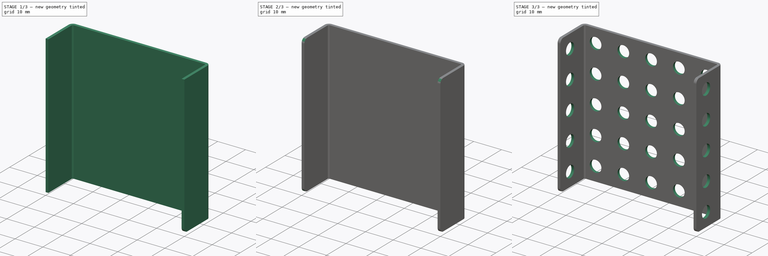
[diagram: build sequence overview — one tinted view per stage of 3, left to right]
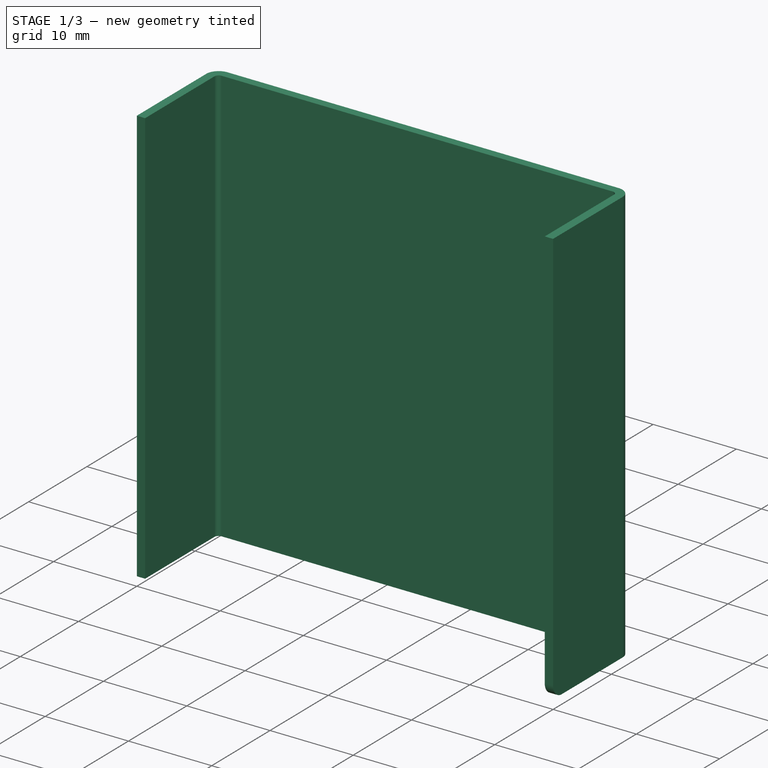
[diagram: stage 1 of 3 — iso view after this stage's code; geometry added in this stage tinted green]
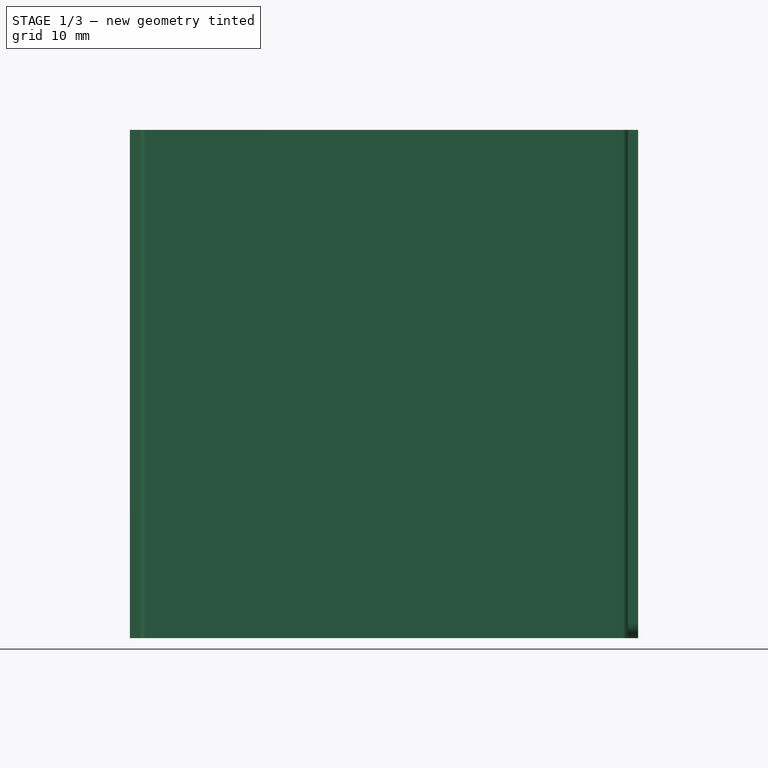
[diagram: stage 1 of 3 — front view after this stage's code; geometry added in this stage tinted green]
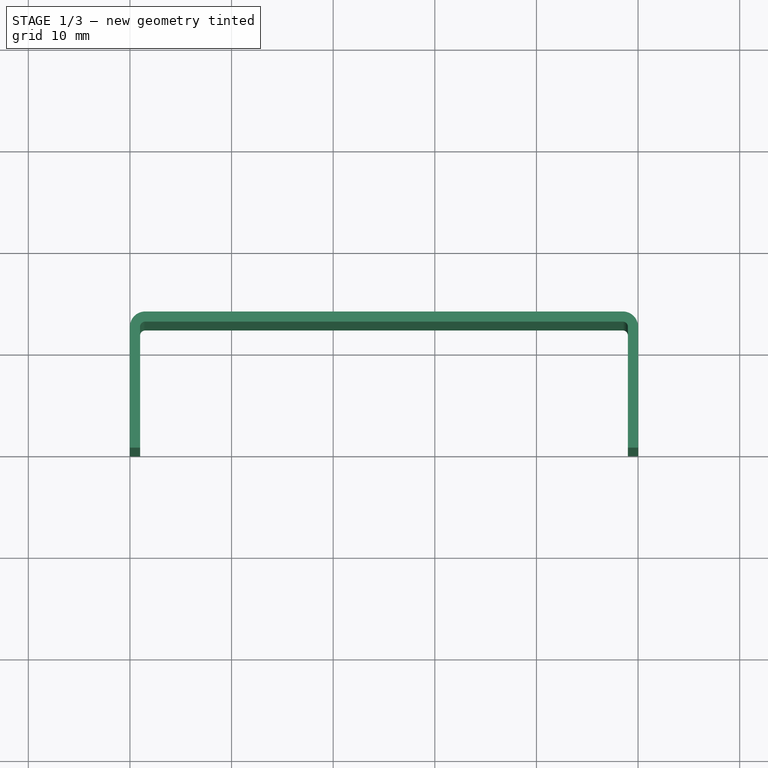
[diagram: stage 1 of 3 — top view after this stage's code; geometry added in this stage tinted green]
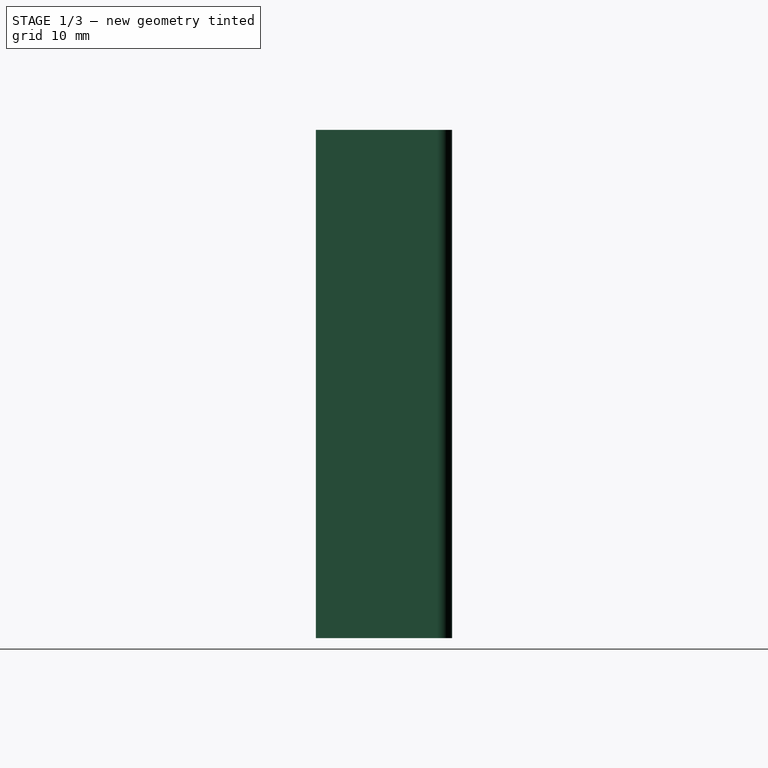
[diagram: stage 1 of 3 — right view after this stage's code; geometry added in this stage tinted green]
FCSTD DOCUMENT  (FreeCAD 0.16RUnknown)
Label: skoba_1_5_1
License: All rights reserved
LicenseURL: http://en.wikipedia.org/wiki/All_rights_reserved
objects: PartDesign::Fillet×4, Sketcher::SketchObject×3, PartDesign::Pocket×2, PartDesign::Pad×1
note: 13 computed .brp shape members not serialized (recipe doc carries the construction recipe); baked Part::Feature solids carry a one-line shape summary decoded from their .brp

FEATURE [Sketcher::SketchObject] Sketch
  sketch-geometry (12):
    g0: LineSegment StartX=0 StartY=0 StartZ=0 EndX=0 EndY=11.9 EndZ=0
    g1: LineSegment StartX=1.5 StartY=13.4 StartZ=0 EndX=48.5 EndY=13.4 EndZ=0
    g2: LineSegment StartX=50 StartY=11.9 StartZ=0 EndX=50 EndY=0 EndZ=0
    g3: ArcOfCircle CenterX=1.5 CenterY=11.9 CenterZ=0 NormalX=0 NormalY=0 NormalZ=1 Radius=1.5 StartAngle=1.5708 EndAngle=3.14159
    g4: ArcOfCircle CenterX=48.5 CenterY=11.9 CenterZ=0 NormalX=0 NormalY=0 NormalZ=1 Radius=1.5 StartAngle=0 EndAngle=1.5708
    g5: LineSegment StartX=0 StartY=0 StartZ=0 EndX=1 EndY=0 EndZ=0
    g6: LineSegment StartX=1 StartY=0 StartZ=0 EndX=1 EndY=11.9 EndZ=0
    g7: LineSegment StartX=1.5 StartY=12.4 StartZ=0 EndX=48.5 EndY=12.4 EndZ=0
    g8: LineSegment StartX=49 StartY=11.9 StartZ=0 EndX=49 EndY=0 EndZ=0
    g9: LineSegment StartX=49 StartY=0 StartZ=0 EndX=50 EndY=0 EndZ=0
    g10: ArcOfCircle CenterX=1.5 CenterY=11.9 CenterZ=0 NormalX=0 NormalY=0 NormalZ=1 Radius=0.5 StartAngle=1.5708 EndAngle=3.14159
    g11: ArcOfCircle CenterX=48.5 CenterY=11.9 CenterZ=0 NormalX=0 NormalY=0 NormalZ=1 Radius=0.5 StartAngle=0 EndAngle=1.5708
  constraints (32):
    c: PointOnObject(g0,g-1)
    c: Vertical(g0)
    c: Horizontal(g1)
    c: PointOnObject(g2,g-1)
    c: Vertical(g2)
    c: Tangent(g0,g3) = 1.5708
    c: Tangent(g1,g3) = 1.5708
    c: Tangent(g1,g4) = 1.5708
    c: Tangent(g2,g4) = 1.5708
    c: Radius(g3) = 1.5
    c: Equal(g3,g4)
    c: DistanceX(g0,g2) = 50
    c: DistanceY(g2,g1) = 13.4
    c: Coincident(g0,g-1)
    c: Coincident(g5,g-1)
    c: PointOnObject(g5,g-1)
    c: Coincident(g5,g6)
    c: Vertical(g6)
    c: Horizontal(g7)
    c: Vertical(g8)
    c: Coincident(g8,g9)
    c: Horizontal(g9)
    c: Coincident(g9,g2)
    c: DistanceX(g5,g5) = 1
    c: DistanceX(g9,g9) = 1
    c: Tangent(g6,g10) = 1.5708
    c: Tangent(g7,g10) = 1.5708
    c: Radius(g10) = 0.5
    c: DistanceY(g7,g1) = 1
    c: Tangent(g7,g11) = 1.5708
    c: Tangent(g8,g11) = 1.5708
    c: Radius(g11) = 0.5
FEATURE [PartDesign::Pad] Pad
  Length = 50
  Length2 = 100
  Sketch = -> Sketch
  Type = 0
FEATURE [PartDesign::Fillet] Fillet
  Base = -> Pad [Edge18]
  Radius = 1.5
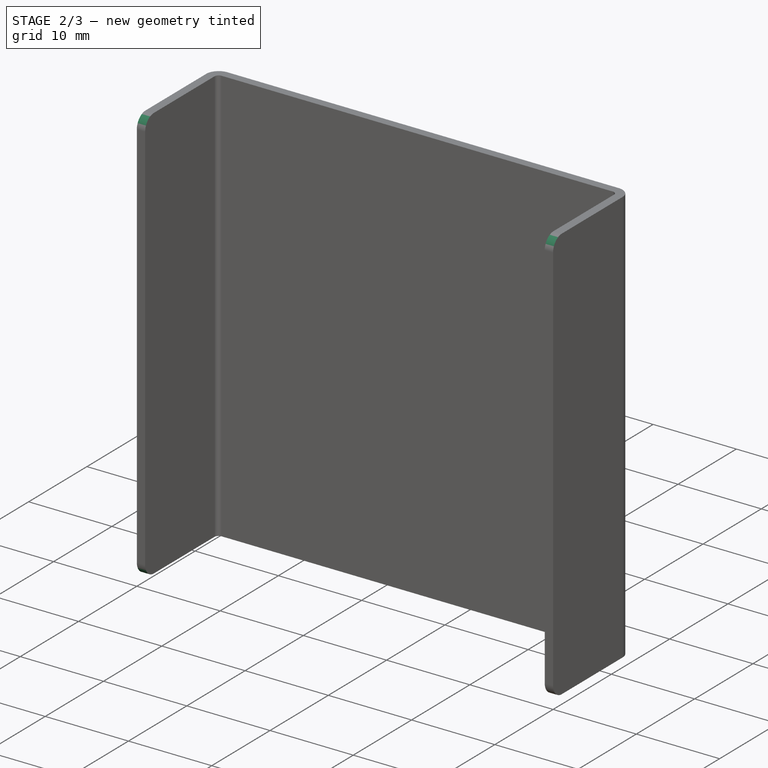
[diagram: stage 2 of 3 — iso view after this stage's code; geometry added in this stage tinted green]
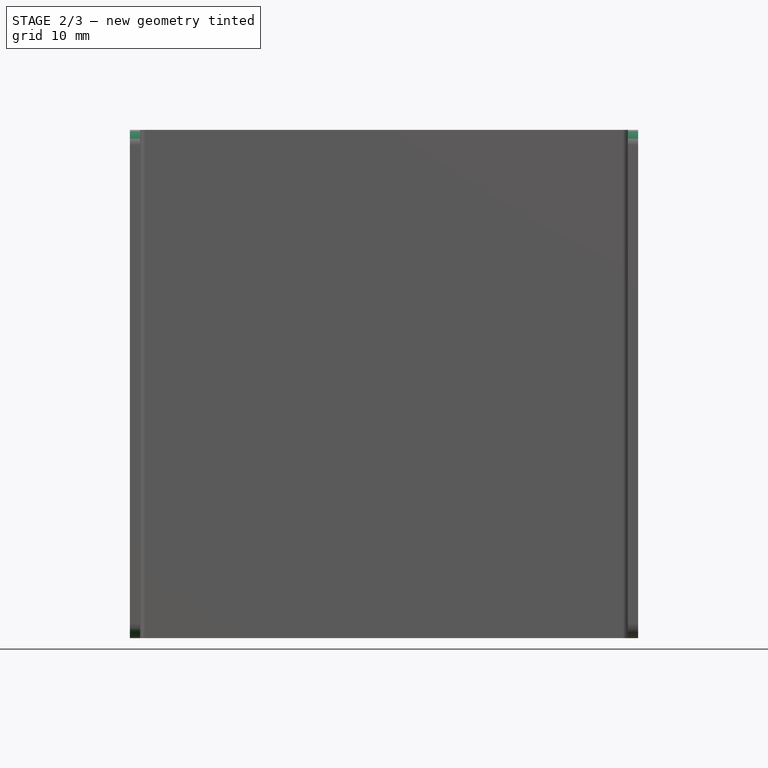
[diagram: stage 2 of 3 — front view after this stage's code; geometry added in this stage tinted green]
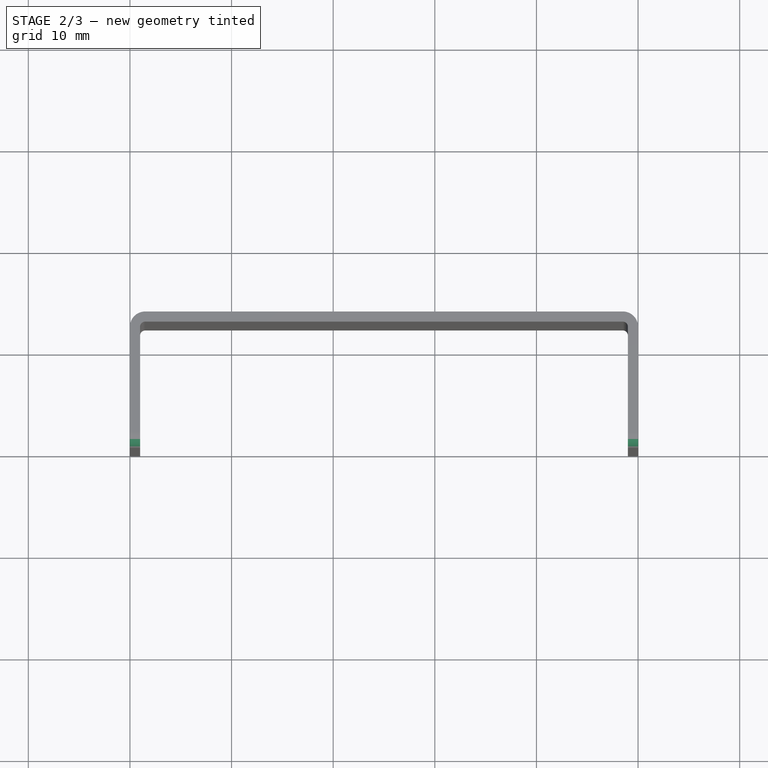
[diagram: stage 2 of 3 — top view after this stage's code; geometry added in this stage tinted green]
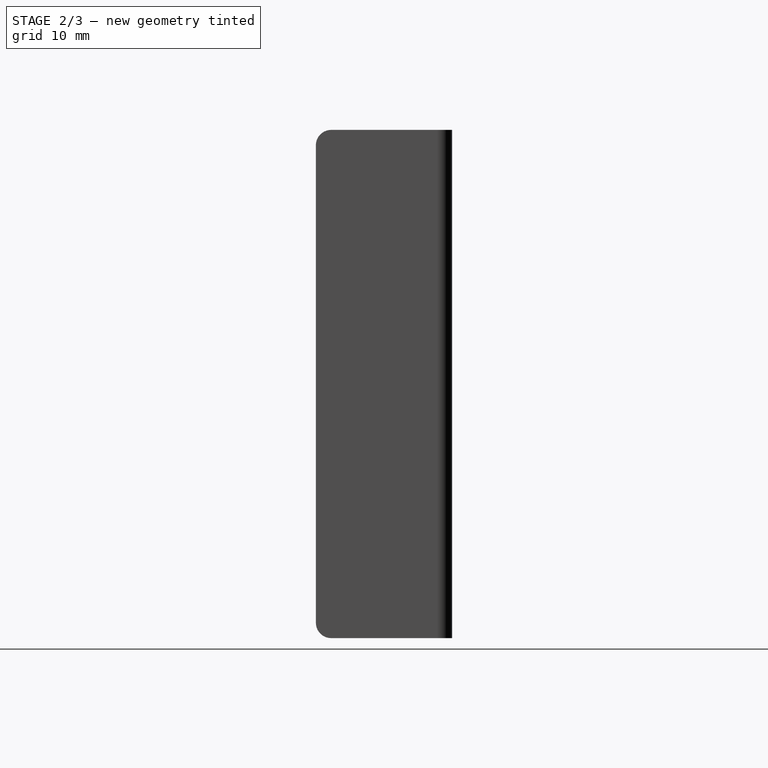
[diagram: stage 2 of 3 — right view after this stage's code; geometry added in this stage tinted green]
FEATURE [PartDesign::Fillet] Fillet001
  Base = -> Fillet [Edge29]
  Radius = 1.5
FEATURE [PartDesign::Fillet] Fillet002
  Base = -> Fillet001 [Edge42]
  Radius = 1.5
FEATURE [PartDesign::Fillet] Fillet003
  Base = -> Fillet002 [Edge22]
  Radius = 1.5
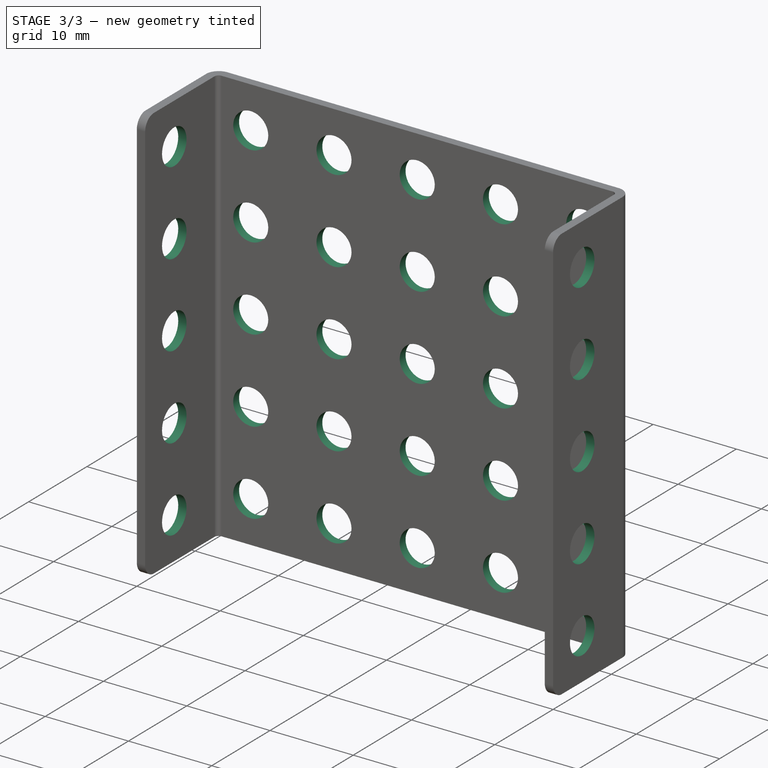
[diagram: stage 3 of 3 — iso view after this stage's code; geometry added in this stage tinted green]
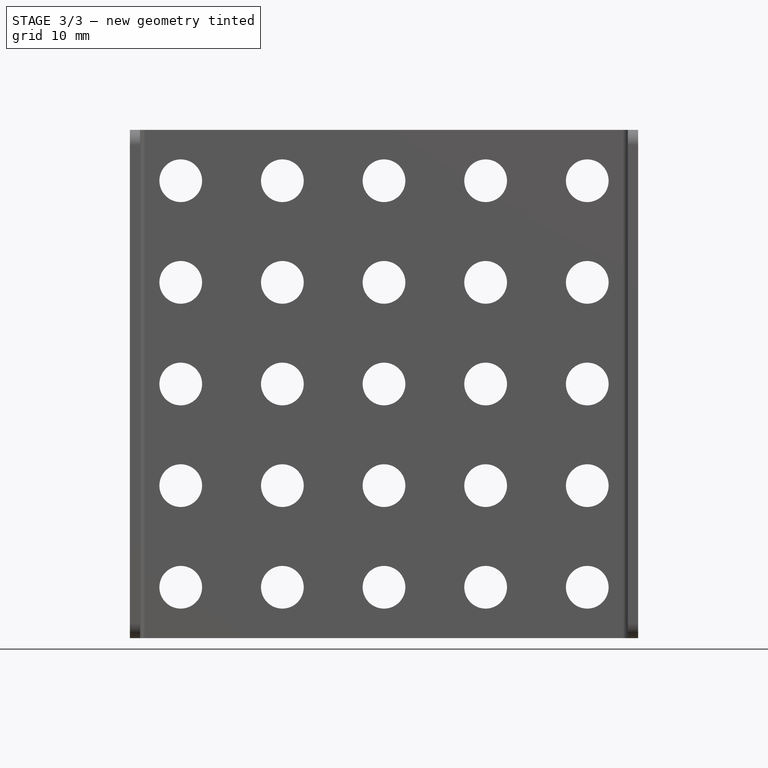
[diagram: stage 3 of 3 — front view after this stage's code; geometry added in this stage tinted green]
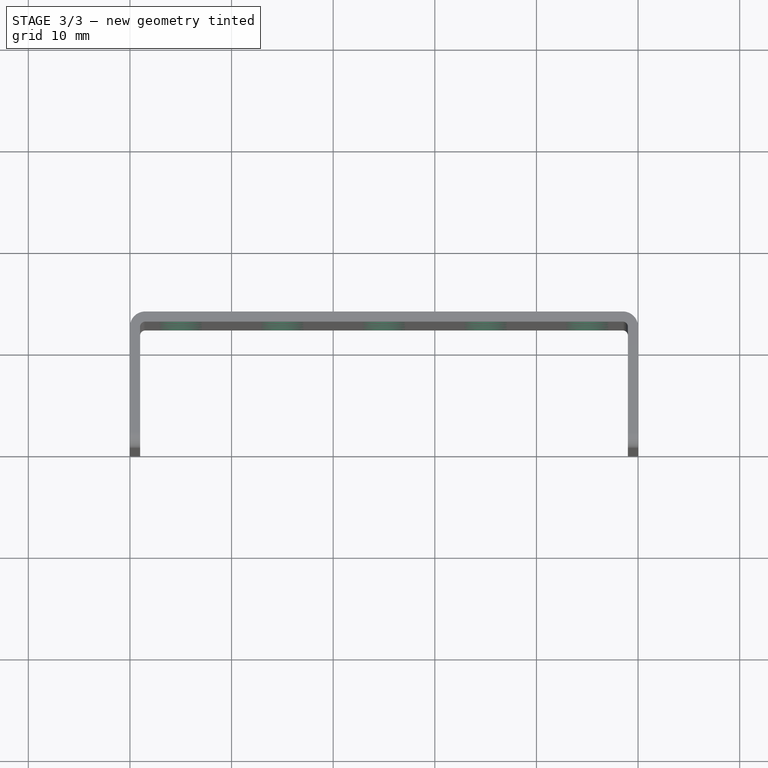
[diagram: stage 3 of 3 — top view after this stage's code; geometry added in this stage tinted green]
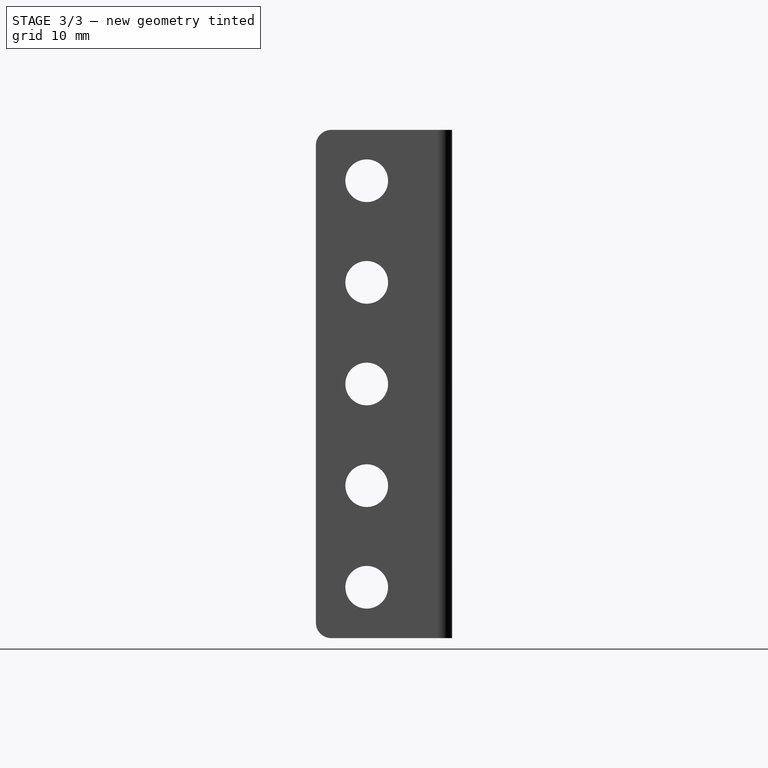
[diagram: stage 3 of 3 — right view after this stage's code; geometry added in this stage tinted green]
FEATURE [Sketcher::SketchObject] Sketch001
  Placement = pos=(0,0,0) rot=(0.57735,-0.57735,-0.57735;2.0944rad)
  Support = -> Fillet003 [Face2]
  sketch-geometry (9):
    g0: Circle CenterX=-5 CenterY=5 CenterZ=0 NormalX=0 NormalY=0 NormalZ=1 Radius=2.1
    g1: Circle CenterX=-5 CenterY=15 CenterZ=0 NormalX=0 NormalY=0 NormalZ=1 Radius=2.1
    g2: LineSegment [constr] StartX=-5 StartY=5 StartZ=0 EndX=-5 EndY=15 EndZ=0
    g3: Circle CenterX=-5 CenterY=25 CenterZ=0 NormalX=0 NormalY=0 NormalZ=1 Radius=2.1
    g4: LineSegment [constr] StartX=-5 StartY=15 StartZ=0 EndX=-5 EndY=25 EndZ=0
    g5: Circle CenterX=-5 CenterY=35 CenterZ=0 NormalX=0 NormalY=0 NormalZ=1 Radius=2.1
    g6: LineSegment [constr] StartX=-5 StartY=25 StartZ=0 EndX=-5 EndY=35 EndZ=0
    g7: Circle CenterX=-5 CenterY=45 CenterZ=0 NormalX=0 NormalY=0 NormalZ=1 Radius=2.1
    g8: LineSegment [constr] StartX=-5 StartY=35 StartZ=0 EndX=-5 EndY=45 EndZ=0
  constraints (23):
    c: Radius(g0) = 2.1
    c: DistanceX(g0) = -5
    c: DistanceY(g0) = 5
    c: Equal(g0,g1) = 2.1
    c: Coincident(g0,g2)
    c: Coincident(g1,g2)
    c: Distance(g2) = 10
    c: Angle(g2) = 1.5708
    c: Equal(g0,g3) = 2.1
    c: Coincident(g1,g4)
    c: Coincident(g3,g4)
    c: Equal(g2,g4)
    c: Parallel(g4,g2)
    c: Equal(g0,g5) = 2.1
    c: Coincident(g3,g6)
    c: Coincident(g5,g6)
    c: Equal(g2,g6)
    c: Parallel(g6,g2)
    c: Equal(g0,g7) = 2.1
    c: Coincident(g5,g8)
    c: Coincident(g7,g8)
    c: Equal(g2,g8)
    c: Parallel(g8,g2)
FEATURE [PartDesign::Pocket] Pocket
  Length = 5
  Sketch = -> Sketch001
  Type = 1
FEATURE [Sketcher::SketchObject] Sketch002
  Placement = pos=(0,13.4,0) rot=(0,0.707107,0.707107;3.14159rad)
  Support = -> Pocket [Face6]
  sketch-geometry (49):
    g0: Circle CenterX=-5 CenterY=5 CenterZ=0 NormalX=0 NormalY=0 NormalZ=1 Radius=2.1
    g1: Circle CenterX=-5 CenterY=15 CenterZ=0 NormalX=0 NormalY=0 NormalZ=1 Radius=2.1
    g2: LineSegment [constr] StartX=-5 StartY=5 StartZ=0 EndX=-5 EndY=15 EndZ=0
    g3: Circle CenterX=-5 CenterY=25 CenterZ=0 NormalX=0 NormalY=0 NormalZ=1 Radius=2.1
    g4: LineSegment [constr] StartX=-5 StartY=15 StartZ=0 EndX=-5 EndY=25 EndZ=0
    g5: Circle CenterX=-5 CenterY=35 CenterZ=0 NormalX=0 NormalY=0 NormalZ=1 Radius=2.1
    g6: LineSegment [constr] StartX=-5 StartY=25 StartZ=0 EndX=-5 EndY=35 EndZ=0
    g7: Circle CenterX=-5 CenterY=45 CenterZ=0 NormalX=0 NormalY=0 NormalZ=1 Radius=2.1
    g8: LineSegment [constr] StartX=-5 StartY=35 StartZ=0 EndX=-5 EndY=45 EndZ=0
    g9: Circle CenterX=-15 CenterY=45 CenterZ=0 NormalX=0 NormalY=0 NormalZ=1 Radius=2.1
    g10: LineSegment [constr] StartX=-5 StartY=45 StartZ=0 EndX=-15 EndY=45 EndZ=0
    g11: Circle CenterX=-25 CenterY=45 CenterZ=0 NormalX=0 NormalY=0 NormalZ=1 Radius=2.1
    g12: LineSegment [constr] StartX=-15 StartY=45 StartZ=0 EndX=-25 EndY=45 EndZ=0
    g13: Circle CenterX=-35 CenterY=45 CenterZ=0 NormalX=0 NormalY=0 NormalZ=1 Radius=2.1
    g14: LineSegment [constr] StartX=-25 StartY=45 StartZ=0 EndX=-35 EndY=45 EndZ=0
    g15: Circle CenterX=-45 CenterY=45 CenterZ=0 NormalX=0 NormalY=0 NormalZ=1 Radius=2.1
    g16: LineSegment [constr] StartX=-35 StartY=45 StartZ=0 EndX=-45 EndY=45 EndZ=0
    g17: Circle CenterX=-15 CenterY=35 CenterZ=0 NormalX=0 NormalY=0 NormalZ=1 Radius=2.1
    g18: LineSegment [constr] StartX=-5 StartY=35 StartZ=0 EndX=-15 EndY=35 EndZ=0
    g19: Circle CenterX=-25 CenterY=35 CenterZ=0 NormalX=0 NormalY=0 NormalZ=1 Radius=2.1
    g20: LineSegment [constr] StartX=-15 StartY=35 StartZ=0 EndX=-25 EndY=35 EndZ=0
    g21: Circle CenterX=-35 CenterY=35 CenterZ=0 NormalX=0 NormalY=0 NormalZ=1 Radius=2.1
    g22: LineSegment [constr] StartX=-25 StartY=35 StartZ=0 EndX=-35 EndY=35 EndZ=0
    g23: Circle CenterX=-45 CenterY=35 CenterZ=0 NormalX=0 NormalY=0 NormalZ=1 Radius=2.1
    g24: LineSegment [constr] StartX=-35 StartY=35 StartZ=0 EndX=-45 EndY=35 EndZ=0
    g25: Circle CenterX=-15 CenterY=25 CenterZ=0 NormalX=0 NormalY=0 NormalZ=1 Radius=2.1
    g26: LineSegment [constr] StartX=-5 StartY=25 StartZ=0 EndX=-15 EndY=25 EndZ=0
    g27: Circle CenterX=-25 CenterY=25 CenterZ=0 NormalX=0 NormalY=0 NormalZ=1 Radius=2.1
    g28: LineSegment [constr] StartX=-15 StartY=25 StartZ=0 EndX=-25 EndY=25 EndZ=0
    g29: Circle CenterX=-35 CenterY=25 CenterZ=0 NormalX=0 NormalY=0 NormalZ=1 Radius=2.1
    g30: LineSegment [constr] StartX=-25 StartY=25 StartZ=0 EndX=-35 EndY=25 EndZ=0
    g31: Circle CenterX=-45 CenterY=25 CenterZ=0 NormalX=0 NormalY=0 NormalZ=1 Radius=2.1
    g32: LineSegment [constr] StartX=-35 StartY=25 StartZ=0 EndX=-45 EndY=25 EndZ=0
    g33: Circle CenterX=-15 CenterY=15 CenterZ=0 NormalX=0 NormalY=0 NormalZ=1 Radius=2.1
    g34: LineSegment [constr] StartX=-5 StartY=15 StartZ=0 EndX=-15 EndY=15 EndZ=0
    g35: Circle CenterX=-25 CenterY=15 CenterZ=0 NormalX=0 NormalY=0 NormalZ=1 Radius=2.1
    g36: LineSegment [constr] StartX=-15 StartY=15 StartZ=0 EndX=-25 EndY=15 EndZ=0
    g37: Circle CenterX=-35 CenterY=15 CenterZ=0 NormalX=0 NormalY=0 NormalZ=1 Radius=2.1
    g38: LineSegment [constr] StartX=-25 StartY=15 StartZ=0 EndX=-35 EndY=15 EndZ=0
    g39: Circle CenterX=-45 CenterY=15 CenterZ=0 NormalX=0 NormalY=0 NormalZ=1 Radius=2.1
    g40: LineSegment [constr] StartX=-35 StartY=15 StartZ=0 EndX=-45 EndY=15 EndZ=0
    g41: Circle CenterX=-15 CenterY=5 CenterZ=0 NormalX=0 NormalY=0 NormalZ=1 Radius=2.1
    g42: LineSegment [constr] StartX=-5 StartY=5 StartZ=0 EndX=-15 EndY=5 EndZ=0
    g43: Circle CenterX=-25 CenterY=5 CenterZ=0 NormalX=0 NormalY=0 NormalZ=1 Radius=2.1
    g44: LineSegment [constr] StartX=-15 StartY=5 StartZ=0 EndX=-25 EndY=5 EndZ=0
    g45: Circle CenterX=-35 CenterY=5 CenterZ=0 NormalX=0 NormalY=0 NormalZ=1 Radius=2.1
    g46: LineSegment [constr] StartX=-25 StartY=5 StartZ=0 EndX=-35 EndY=5 EndZ=0
    g47: Circle CenterX=-45 CenterY=5 CenterZ=0 NormalX=0 NormalY=0 NormalZ=1 Radius=2.1
    g48: LineSegment [constr] StartX=-35 StartY=5 StartZ=0 EndX=-45 EndY=5 EndZ=0
  constraints (107):
    c: Radius(g0) = 2.1
    c: DistanceX(g0) = -5
    c: DistanceY(g0) = 5
    c: Equal(g0,g1) = 2.1
    c: Coincident(g0,g2)
    c: Coincident(g1,g2)
    c: Distance(g2) = 10
    c: Angle(g2) = 1.5708
    c: Equal(g0,g3) = 2.1
    c: Coincident(g1,g4)
    c: Coincident(g3,g4)
    c: Equal(g2,g4)
    c: Parallel(g4,g2)
    c: Equal(g0,g5) = 2.1
    c: Coincident(g3,g6)
    c: Coincident(g5,g6)
    c: Equal(g2,g6)
    c: Parallel(g6,g2)
    c: Equal(g0,g7) = 2.1
    c: Coincident(g5,g8)
    c: Coincident(g7,g8)
    c: Equal(g2,g8)
    c: Parallel(g8,g2)
    c: Coincident(g7,g10)
    c: Coincident(g9,g10)
    c: Distance(g10) = 10
    c: Angle(g10) = 3.14159
    c: Coincident(g9,g12)
    c: Coincident(g11,g12)
    c: Equal(g10,g12)
    c: Parallel(g12,g10)
    c: Coincident(g11,g14)
    c: Coincident(g13,g14)
    c: Equal(g10,g14)
    c: Parallel(g14,g10)
    c: Coincident(g13,g16)
    c: Coincident(g15,g16)
    c: Equal(g10,g16)
    c: Parallel(g16,g10)
    c: Coincident(g5,g18)
    c: Coincident(g17,g18)
    c: Distance(g18) = 10
    c: Angle(g18) = 3.14159
    c: Coincident(g17,g20)
    c: Coincident(g19,g20)
    c: Equal(g18,g20)
    c: Parallel(g20,g18)
    c: Coincident(g19,g22)
    c: Coincident(g21,g22)
    c: Equal(g18,g22)
    c: Parallel(g22,g18)
    c: Coincident(g21,g24)
    c: Coincident(g23,g24)
    c: Equal(g18,g24)
    c: Parallel(g24,g18)
    c: Coincident(g3,g26)
    c: Coincident(g25,g26)
    c: Distance(g26) = 10
    c: Angle(g26) = 3.14159
    c: Coincident(g25,g28)
    c: Coincident(g27,g28)
    c: Equal(g26,g28)
    c: Parallel(g28,g26)
    c: Coincident(g27,g30)
    c: Coincident(g29,g30)
    c: Equal(g26,g30)
    c: Parallel(g30,g26)
    c: Coincident(g29,g32)
    c: Coincident(g31,g32)
    c: Equal(g26,g32)
    c: Parallel(g32,g26)
    c: Coincident(g1,g34)
    c: Coincident(g33,g34)
    c: Distance(g34) = 10
    c: Angle(g34) = 3.14159
    c: Coincident(g33,g36)
    c: Coincident(g35,g36)
    c: Equal(g34,g36)
    c: Parallel(g36,g34)
    c: Coincident(g35,g38)
    c: Coincident(g37,g38)
    c: Equal(g34,g38)
    c: Parallel(g38,g34)
    c: Coincident(g37,g40)
    c: Coincident(g39,g40)
    c: Equal(g34,g40)
    c: Parallel(g40,g34)
    c: Equal(g0,g41) = 2.1
    c: Coincident(g0,g42)
    c: Coincident(g41,g42)
    c: Distance(g42) = 10
    c: Angle(g42) = 3.14159
    c: Equal(g0,g43) = 2.1
    c: Coincident(g41,g44)
    c: Coincident(g43,g44)
    c: Equal(g42,g44)
    c: Parallel(g44,g42)
    c: Equal(g0,g45) = 2.1
    c: Coincident(g43,g46)
    c: Coincident(g45,g46)
    c: Equal(g42,g46)
    c: Parallel(g46,g42)
    c: Equal(g0,g47) = 2.1
    c: Coincident(g45,g48)
    c: Coincident(g47,g48)
    c: Equal(g42,g48)
    c: Parallel(g48,g42)
FEATURE [PartDesign::Pocket] Pocket001
  Length = 5
  Sketch = -> Sketch002
  Type = 1
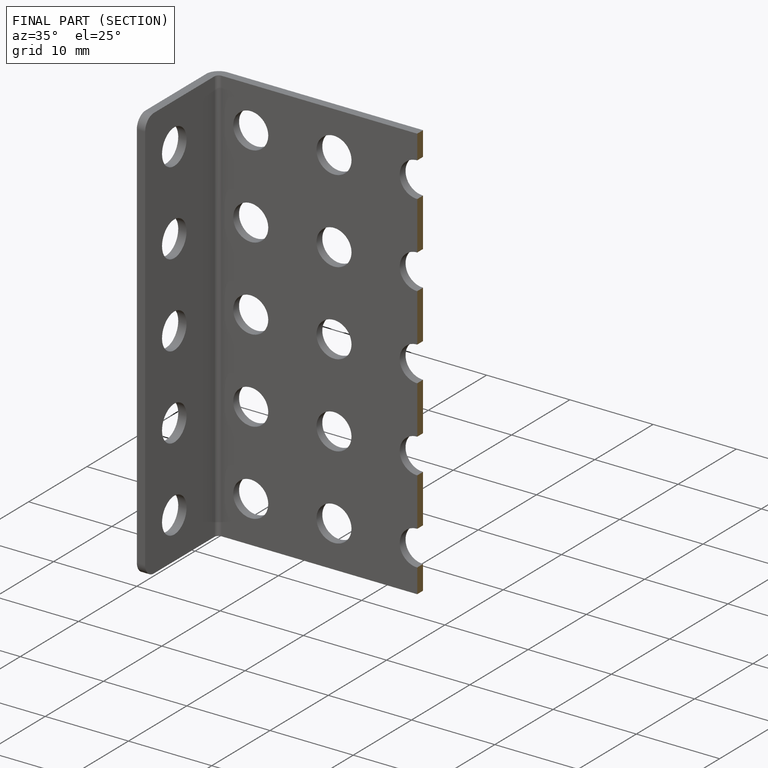
[diagram: finished part — half-section view (interior)]
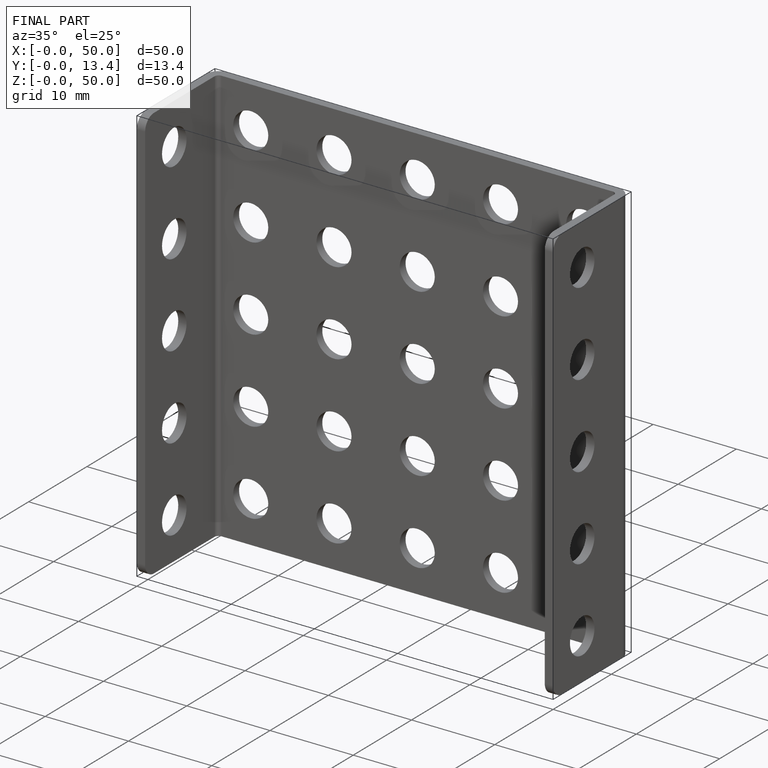
[diagram: finished part — iso view with bounding-box wireframe]
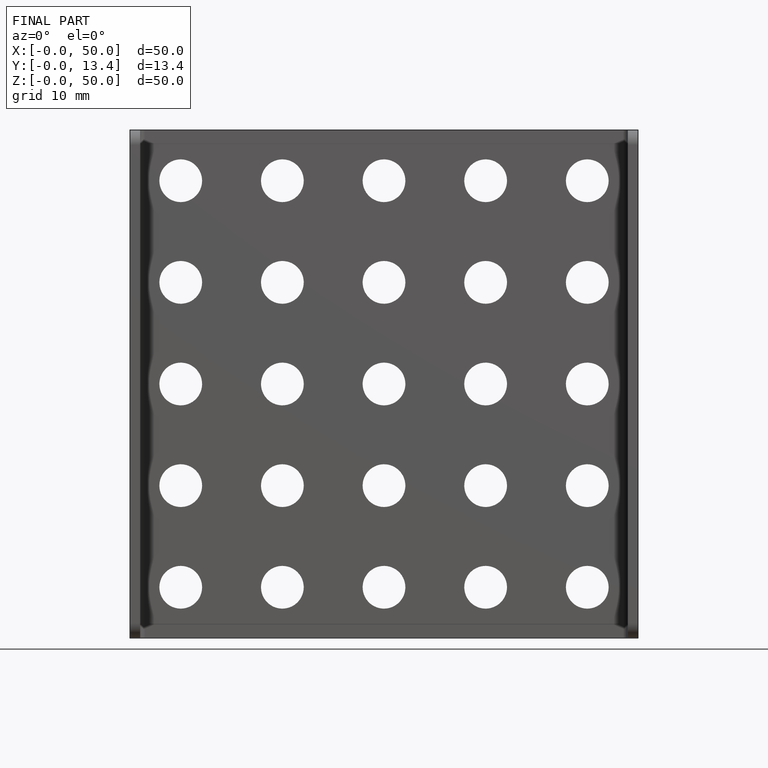
[diagram: finished part — front view with bounding-box wireframe]
